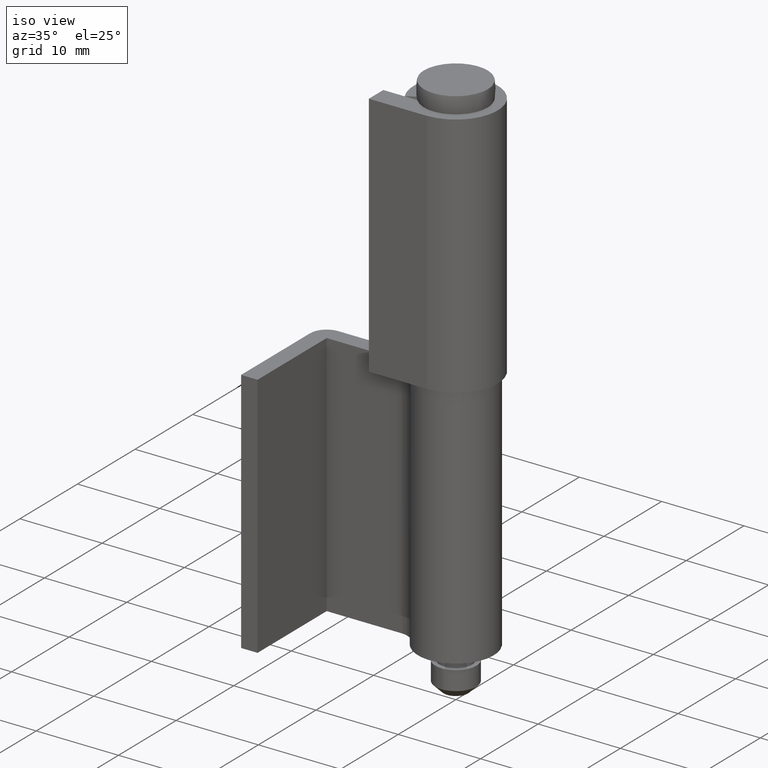
[diagram: clean part render]
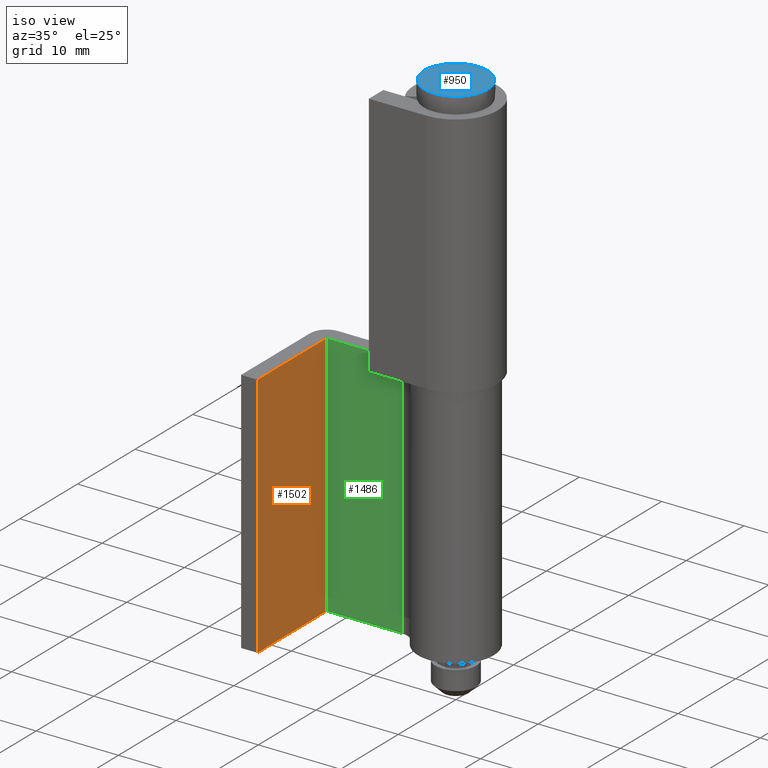
[diagram: same view with three faces highlighted in distinct colors, each labeled with its STEP entity id]
A machine part, iso view with three faces highlighted in distinct colors.
Their STEP definitions:

[orange] entity #1502 — the highlighted face is a freeform B-spline surface patch.
#999=CARTESIAN_POINT('',(-15.0,-13.0,4.999999999999890));
#1000=VERTEX_POINT('',#999);
#1116=CARTESIAN_POINT('',(-15.0,-1.0,4.999999999999890));
#1117=VERTEX_POINT('',#1116);
#1123=CARTESIAN_POINT('',(-15.0,-13.0,4.999999999999890));
#1124=CARTESIAN_POINT('',(-15.0,-1.0,4.999999999999890));
#1125=QUASI_UNIFORM_CURVE('',1,(#1123,#1124),.UNSPECIFIED.,.F.,.U.);
#1126=EDGE_CURVE('',#1000,#1117,#1125,.T.);
#1138=CARTESIAN_POINT('',(-15.0,-13.0,34.999991999999949));
#1139=VERTEX_POINT('',#1138);
#1145=CARTESIAN_POINT('',(-15.0,-1.0,34.999991999999949));
#1146=VERTEX_POINT('',#1145);
#1147=CARTESIAN_POINT('',(-15.0,-13.0,34.999991999999949));
#1148=CARTESIAN_POINT('',(-15.0,-1.0,34.999991999999949));
#1149=QUASI_UNIFORM_CURVE('',1,(#1147,#1148),.UNSPECIFIED.,.F.,.U.);
#1150=EDGE_CURVE('',#1139,#1146,#1149,.T.);
#1479=CARTESIAN_POINT('',(-15.0,-1.0,34.999991999999949));
#1480=CARTESIAN_POINT('',(-15.0,-1.0,4.999999999999890));
#1481=QUASI_UNIFORM_CURVE('',1,(#1479,#1480),.UNSPECIFIED.,.F.,.U.);
#1482=EDGE_CURVE('',#1146,#1117,#1481,.T.);
#1487=CARTESIAN_POINT('',(-15.0,-13.599399976741671,3.501500457745689));
#1488=CARTESIAN_POINT('',(-15.0,-13.599399976741671,36.498492346916642));
#1489=CARTESIAN_POINT('',(-15.0,-0.400599701393248,3.501500457745689));
#1490=CARTESIAN_POINT('',(-15.0,-0.400599701393248,36.498492346916642));
#1491=B_SPLINE_SURFACE_WITH_KNOTS('',1,1,((#1487,#1489),(#1488,#1490)),.UNSPECIFIED.,.F.,.F.,.U.,(2,2),(2,2),(0.0,32.996991889170943),(0.0,13.198800275348420),.UNSPECIFIED.);
#1492=ORIENTED_EDGE('',*,*,#1126,.T.);
#1493=ORIENTED_EDGE('',*,*,#1482,.F.);
#1494=ORIENTED_EDGE('',*,*,#1150,.F.);
#1495=CARTESIAN_POINT('',(-15.0,-13.0,34.999991999999949));
#1496=CARTESIAN_POINT('',(-15.0,-13.0,4.999999999999890));
#1497=QUASI_UNIFORM_CURVE('',1,(#1495,#1496),.UNSPECIFIED.,.F.,.U.);
#1498=EDGE_CURVE('',#1139,#1000,#1497,.T.);
#1499=ORIENTED_EDGE('',*,*,#1498,.T.);
#1500=EDGE_LOOP('',(#1492,#1493,#1494,#1499));
#1501=FACE_OUTER_BOUND('',#1500,.T.);
#1502=ADVANCED_FACE('',(#1501),#1491,.F.);

[blue] entity #950 — the highlighted face is a freeform B-spline surface patch.
#904=CARTESIAN_POINT('',(-3.872983366905800,0.0,66.999991919835395));
#905=VERTEX_POINT('',#904);
#906=CARTESIAN_POINT('',(3.872983366905800,0.0,66.999991919835395));
#907=VERTEX_POINT('',#906);
#908=CARTESIAN_POINT('',(-3.872983366905800,0.0,66.999991919835395));
#909=CARTESIAN_POINT('',(-3.872983366905801,3.872983366905801,66.999991919835395));
#910=CARTESIAN_POINT('',(0.0,3.872983366905800,66.999991919835395));
#911=CARTESIAN_POINT('',(3.872983366905801,3.872983366905801,66.999991919835395));
#912=CARTESIAN_POINT('',(3.872983366905800,0.0,66.999991919835395));
#920=(BOUNDED_CURVE()B_SPLINE_CURVE(2,(#908,#909,#910,#911,#912),.UNSPECIFIED.,.F.,.U.)B_SPLINE_CURVE_WITH_KNOTS((3,2,3),(0.0,0.250000000000000,0.500000000000000),.UNSPECIFIED.)CURVE()GEOMETRIC_REPRESENTATION_ITEM()RATIONAL_B_SPLINE_CURVE((1.0,0.707106781186548,1.0,0.707106781186548,1.0))REPRESENTATION_ITEM(''));
#921=EDGE_CURVE('',#905,#907,#920,.T.);
#923=CARTESIAN_POINT('',(3.872983366905800,0.0,66.999991919835395));
#924=CARTESIAN_POINT('',(3.872983366905801,-3.872983366905801,66.999991919835395));
#925=CARTESIAN_POINT('',(0.0,-3.872983366905800,66.999991919835395));
#926=CARTESIAN_POINT('',(-3.872983366905801,-3.872983366905801,66.999991919835395));
#927=CARTESIAN_POINT('',(-3.872983366905800,0.0,66.999991919835395));
#935=(BOUNDED_CURVE()B_SPLINE_CURVE(2,(#923,#924,#925,#926,#927),.UNSPECIFIED.,.F.,.U.)B_SPLINE_CURVE_WITH_KNOTS((3,2,3),(0.500000000000000,0.750000000000000,1.0),.UNSPECIFIED.)CURVE()GEOMETRIC_REPRESENTATION_ITEM()RATIONAL_B_SPLINE_CURVE((1.0,0.707106781186548,1.0,0.707106781186548,1.0))REPRESENTATION_ITEM(''));
#936=EDGE_CURVE('',#907,#905,#935,.T.);
#941=CARTESIAN_POINT('',(4.259894535673690,-4.259894535673629,66.999991959917693));
#942=CARTESIAN_POINT('',(-4.259894604928029,-4.259894535673629,66.999991959917693));
#943=CARTESIAN_POINT('',(4.259894535673690,4.259894604927967,66.999991959917693));
#944=CARTESIAN_POINT('',(-4.259894604928029,4.259894604927967,66.999991959917693));
#945=B_SPLINE_SURFACE_WITH_KNOTS('',1,1,((#941,#943),(#942,#944)),.UNSPECIFIED.,.F.,.F.,.U.,(2,2),(2,2),(0.0,8.519789140601720),(0.0,8.519789140601596),.UNSPECIFIED.);
#946=ORIENTED_EDGE('',*,*,#936,.F.);
#947=ORIENTED_EDGE('',*,*,#921,.F.);
#948=EDGE_LOOP('',(#946,#947));
#949=FACE_OUTER_BOUND('',#948,.T.);
#950=ADVANCED_FACE('',(#949),#945,.F.);

[green] entity #1486 — the highlighted face is a freeform B-spline surface patch.
#1101=CARTESIAN_POINT('',(-5.822586000000000,-1.0,4.999999999999890));
#1102=VERTEX_POINT('',#1101);
#1116=CARTESIAN_POINT('',(-15.0,-1.0,4.999999999999890));
#1117=VERTEX_POINT('',#1116);
#1118=CARTESIAN_POINT('',(-15.0,-1.0,4.999999999999890));
#1119=CARTESIAN_POINT('',(-5.822586000000000,-1.0,4.999999999999890));
#1120=QUASI_UNIFORM_CURVE('',1,(#1118,#1119),.UNSPECIFIED.,.F.,.U.);
#1121=EDGE_CURVE('',#1117,#1102,#1120,.T.);
#1145=CARTESIAN_POINT('',(-15.0,-1.0,34.999991999999949));
#1146=VERTEX_POINT('',#1145);
#1152=CARTESIAN_POINT('',(-5.822586000000000,-1.0,34.999991999999949));
#1153=VERTEX_POINT('',#1152);
#1154=CARTESIAN_POINT('',(-15.0,-1.0,34.999991999999949));
#1155=CARTESIAN_POINT('',(-5.822586000000000,-1.0,34.999991999999949));
#1156=QUASI_UNIFORM_CURVE('',1,(#1154,#1155),.UNSPECIFIED.,.F.,.U.);
#1157=EDGE_CURVE('',#1146,#1153,#1156,.T.);
#1463=CARTESIAN_POINT('',(-5.822586000000000,-1.0,34.999991999999949));
#1464=CARTESIAN_POINT('',(-5.822586000000000,-1.0,4.999999999999890));
#1465=QUASI_UNIFORM_CURVE('',1,(#1463,#1464),.UNSPECIFIED.,.F.,.U.);
#1466=EDGE_CURVE('',#1153,#1102,#1465,.T.);
#1471=CARTESIAN_POINT('',(-15.458411811512390,-1.0,3.501500457745689));
#1472=CARTESIAN_POINT('',(-15.458411811512390,-1.0,36.498492346916642));
#1473=CARTESIAN_POINT('',(-5.364173942330183,-1.0,3.501500457745689));
#1474=CARTESIAN_POINT('',(-5.364173942330183,-1.0,36.498492346916642));
#1475=B_SPLINE_SURFACE_WITH_KNOTS('',1,1,((#1471,#1473),(#1472,#1474)),.UNSPECIFIED.,.F.,.F.,.U.,(2,2),(2,2),(0.0,32.996991889170943),(0.0,10.094237869182210),.UNSPECIFIED.);
#1476=ORIENTED_EDGE('',*,*,#1121,.T.);
#1477=ORIENTED_EDGE('',*,*,#1466,.F.);
#1478=ORIENTED_EDGE('',*,*,#1157,.F.);
#1479=CARTESIAN_POINT('',(-15.0,-1.0,34.999991999999949));
#1480=CARTESIAN_POINT('',(-15.0,-1.0,4.999999999999890));
#1481=QUASI_UNIFORM_CURVE('',1,(#1479,#1480),.UNSPECIFIED.,.F.,.U.);
#1482=EDGE_CURVE('',#1146,#1117,#1481,.T.);
#1483=ORIENTED_EDGE('',*,*,#1482,.T.);
#1484=EDGE_LOOP('',(#1476,#1477,#1478,#1483));
#1485=FACE_OUTER_BOUND('',#1484,.T.);
#1486=ADVANCED_FACE('',(#1485),#1475,.F.);